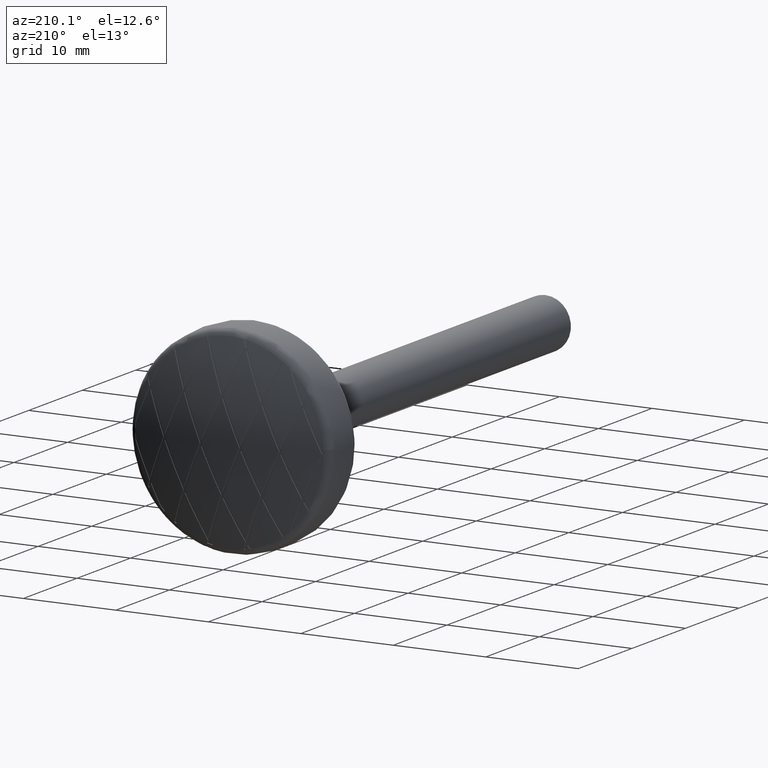
[diagram: clean part render]
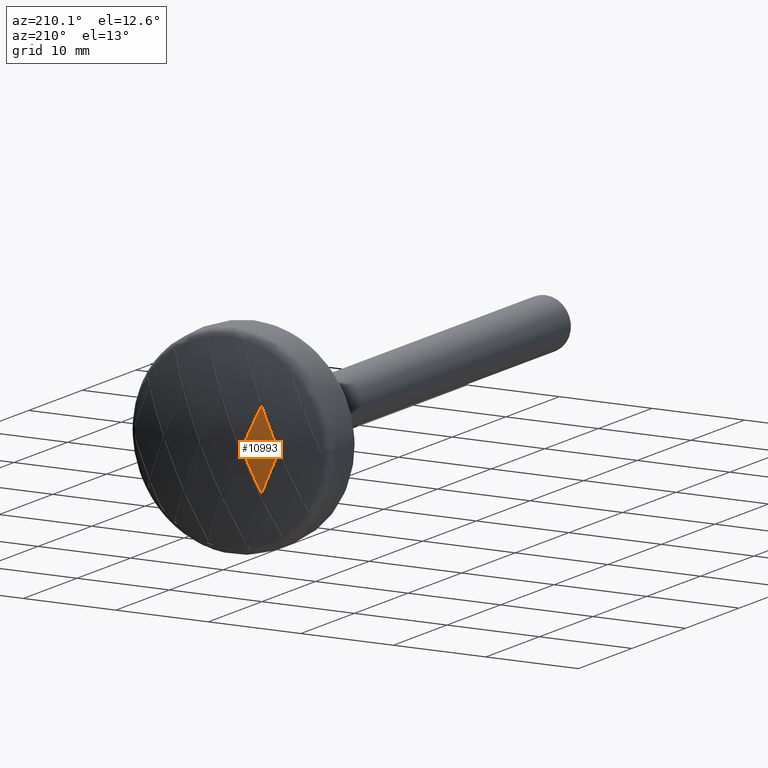
[diagram: same view with one face highlighted and labeled with its STEP entity id]
A machine part, auxiliary view. The second image highlights one B-rep face of the part: STEP entity #10993.
In plain terms, the highlighted spherical surface has radius 31.4724 mm.
Its self-contained STEP definition (entity closure, byte-faithful):
#115 = CARTESIAN_POINT ( 'NONE',  ( -1.898555979938571614, -0.9724364245106043025, 0.8438026577504738057 ) ) ;
#305 = VERTEX_POINT ( 'NONE', #12860 ) ;
#1252 = EDGE_CURVE ( 'NONE', #11336, #10749, #3740, .T. ) ;
#1285 = DIRECTION ( 'NONE',  ( 0.9138115486202577076, -0.000000000000000000, -0.4061384660534466673 ) ) ;
#1492 = AXIS2_PLACEMENT_3D ( 'NONE', #5152, #6455, #7748 ) ;
#1838 = CARTESIAN_POINT ( 'NONE',  ( -4.139390778056824871, 29.94286495553257410, 4.198075638015590805 ) ) ;
#2170 = DIRECTION ( 'NONE',  ( 0.4061384660534483326, 0.000000000000000000, -0.9138115486202568194 ) ) ;
#2233 = AXIS2_PLACEMENT_3D ( 'NONE', #7470, #7314, #2170 ) ;
#2685 = AXIS2_PLACEMENT_3D ( 'NONE', #10309, #12898, #14251 ) ;
#3740 = CIRCLE ( 'NONE', #2233, 31.40378538903668826 ) ;
#3865 = AXIS2_PLACEMENT_3D ( 'NONE', #10104, #16598, #8750 ) ;
#3934 = DIRECTION ( 'NONE',  ( 0.4061384660534466118, 7.105156411348194372E-15, 0.9138115486202575966 ) ) ;
#4507 = CARTESIAN_POINT ( 'NONE',  ( -2.273579383383225405, 30.41777050826249607, 1.084202172485504434E-16 ) ) ;
#5152 = CARTESIAN_POINT ( 'NONE',  ( -5.014653360733649201, -0.9724364245106043025, 2.228734826992724738 ) ) ;
#5182 = CIRCLE ( 'NONE', #3865, 30.99032505859682018 ) ;
#6011 = EDGE_LOOP ( 'NONE', ( #9268, #9454, #10903, #6800 ) ) ;
#6455 = DIRECTION ( 'NONE',  ( 0.9138115486202577076, -0.000000000000000000, -0.4061384660534463342 ) ) ;
#6800 = ORIENTED_EDGE ( 'NONE', *, *, #10600, .F. ) ;
#7314 = DIRECTION ( 'NONE',  ( -0.9138115486202568194, -0.000000000000000000, -0.4061384660534483326 ) ) ;
#7470 = CARTESIAN_POINT ( 'NONE',  ( -1.898555979938567617, -0.9724364245106043025, -0.8438026577504763592 ) ) ;
#7748 = DIRECTION ( 'NONE',  ( 0.4061384660534463897, 1.421098106040816318E-14, 0.9138115486202577076 ) ) ;
#8350 = CARTESIAN_POINT ( 'NONE',  ( -4.139390778056818654, 29.94286495553257410, -4.198075638015595246 ) ) ;
#8750 = DIRECTION ( 'NONE',  ( 0.4061384660534486102, 7.105490530204081589E-15, -0.9138115486202567084 ) ) ;
#9018 = CIRCLE ( 'NONE', #1492, 30.99032505859681663 ) ;
#9268 = ORIENTED_EDGE ( 'NONE', *, *, #10500, .F. ) ;
#9454 = ORIENTED_EDGE ( 'NONE', *, *, #11537, .T. ) ;
#10104 = CARTESIAN_POINT ( 'NONE',  ( -5.014653360733644760, -0.9724364245106043025, -2.228734826992737172 ) ) ;
#10309 = CARTESIAN_POINT ( 'NONE',  ( -3.515553213312507605E-18, -0.9724364245106043025, 0.000000000000000000 ) ) ;
#10436 = SPHERICAL_SURFACE ( 'NONE', #2685, 31.47243642451060097 ) ;
#10500 = EDGE_CURVE ( 'NONE', #305, #12258, #5182, .T. ) ;
#10600 = EDGE_CURVE ( 'NONE', #12258, #10749, #10642, .T. ) ;
#10642 = CIRCLE ( 'NONE', #13927, 31.40378538903669181 ) ;
#10749 = VERTEX_POINT ( 'NONE', #4507 ) ;
#10903 = ORIENTED_EDGE ( 'NONE', *, *, #1252, .T. ) ;
#10993 = ADVANCED_FACE ( 'NONE', ( #13870 ), #10436, .T. ) ;
#11336 = VERTEX_POINT ( 'NONE', #1838 ) ;
#11537 = EDGE_CURVE ( 'NONE', #305, #11336, #9018, .T. ) ;
#12258 = VERTEX_POINT ( 'NONE', #8350 ) ;
#12860 = CARTESIAN_POINT ( 'NONE',  ( -6.005202172730416343, 29.92176693727710912, -7.806255641895631925E-15 ) ) ;
#12898 = DIRECTION ( 'NONE',  ( 0.000000000000000000, 0.000000000000000000, 1.000000000000000000 ) ) ;
#13870 = FACE_OUTER_BOUND ( 'NONE', #6011, .T. ) ;
#13927 = AXIS2_PLACEMENT_3D ( 'NONE', #115, #1285, #3934 ) ;
#14251 = DIRECTION ( 'NONE',  ( 1.000000000000000000, 0.000000000000000000, 0.000000000000000000 ) ) ;
#16598 = DIRECTION ( 'NONE',  ( -0.9138115486202568194, -0.000000000000000000, -0.4061384660534486102 ) ) ;